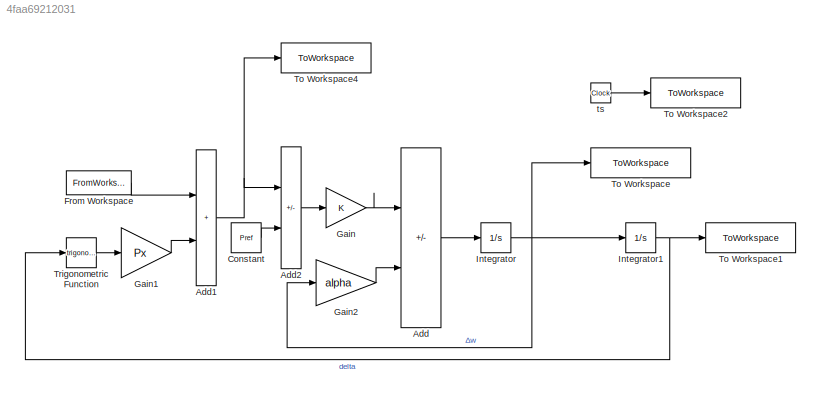
MODEL slx_4faa69212031
KIND model
CONFIG AbsTol = auto
CONFIG EnableMultiTasking = off
CONFIG FixedStep = auto
CONFIG MaxStep = MaxStep
CONFIG MinStep = auto
CONFIG RelTol = RelTol
CONFIG SampleTimeConstraint = Unconstrained
CONFIG SolverName = VariableStepAuto
CONFIG StartTime = 0.0
CONFIG StopTime = SimTime
BLOCK [Sum] Add
  IconShape = rectangular
  Inputs = --
BLOCK [Sum] Add1
  IconShape = rectangular
BLOCK [Sum] Add2
  IconShape = rectangular
  Inputs = +-
BLOCK [Constant] Constant
  Value = Pref
BLOCK [FromWorkspace] From Workspace
  VariableName = PLstep
BLOCK [Gain] Gain
  Gain = K
BLOCK [Gain] Gain1
  Gain = Px
BLOCK [Gain] Gain2
  Gain = alpha
BLOCK [Integrator] Integrator
BLOCK [Integrator] Integrator1
  InitialCondition = asin(Pref/Px)
BLOCK [ToWorkspace] To Workspace
  FixptAsFi = on
  MaxDataPoints = inf
  SampleTime = -1
  VariableName = DeltaOmega
BLOCK [ToWorkspace] To Workspace1
  FixptAsFi = on
  MaxDataPoints = inf
  SampleTime = -1
  VariableName = delta
BLOCK [ToWorkspace] To Workspace2
  FixptAsFi = on
  MaxDataPoints = inf
  SampleTime = -1
  VariableName = ts
BLOCK [ToWorkspace] To Workspace4
  FixptAsFi = on
  MaxDataPoints = inf
  SampleTime = -1
  VariableName = P
BLOCK [Trigonometry] Trigonometric Function
BLOCK [Clock] ts
NET Add1:1 -> Add2:1, To Workspace4:1
LINE Add2:1 -> Gain:1
LINE Add:1 -> Integrator:1
LINE Constant:1 -> Add2:2
LINE From Workspace:1 -> Add1:1
LINE Gain1:1 -> Add1:2
LINE Gain2:1 -> Add:2
LINE Gain:1 -> Add:1
NET Integrator1:1 -> To Workspace1:1, Trigonometric Function:1
NET Integrator:1 -> Gain2:1, Integrator1:1, To Workspace:1
LINE Trigonometric Function:1 -> Gain1:1
LINE ts:1 -> To Workspace2:1
note: NET lines group one-source signal fan-out (src -> all destinations, sorted); 1:1 wires keep LINE
